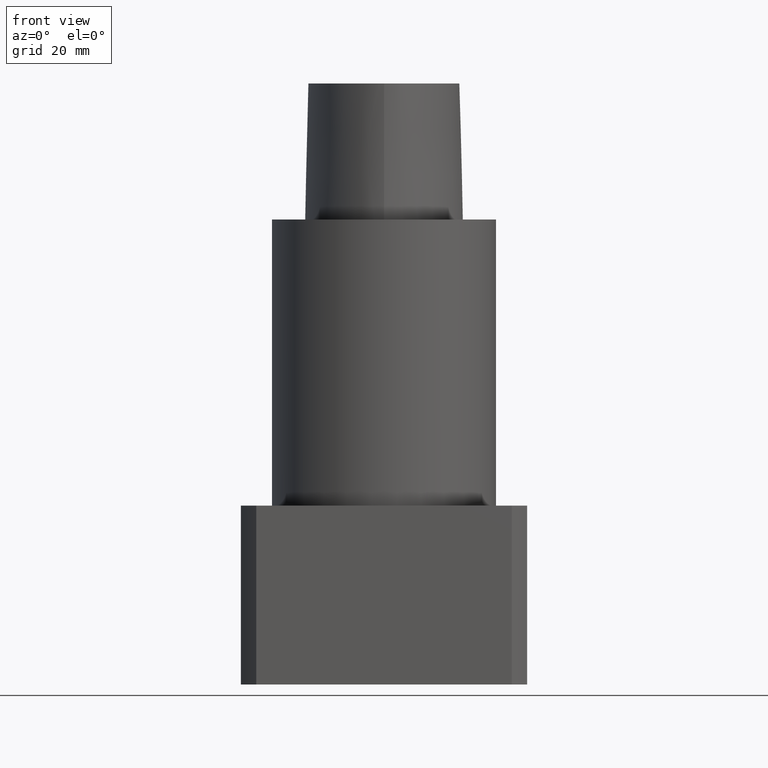
[diagram: clean part render]
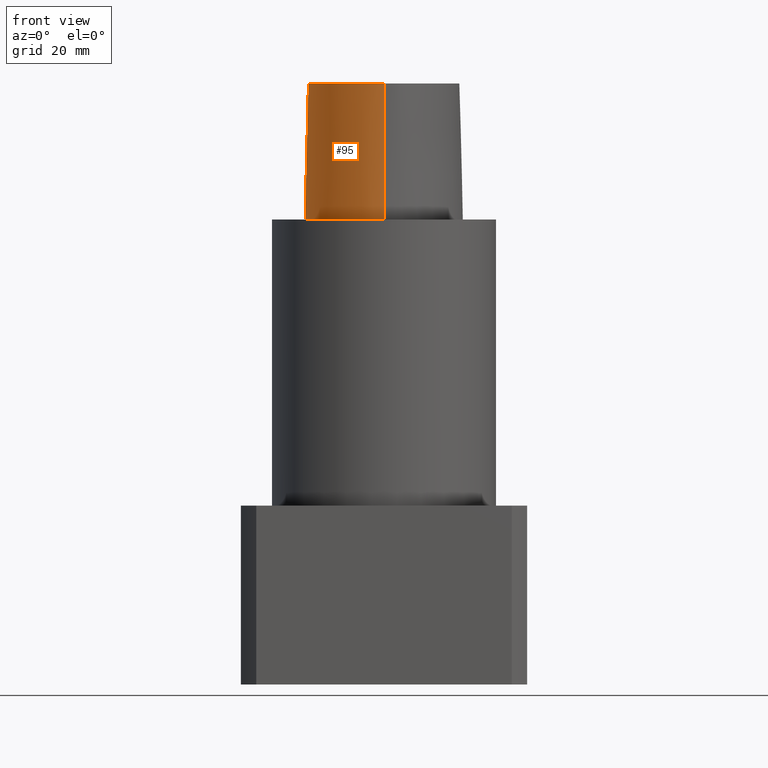
[diagram: same view with one face highlighted and labeled with its STEP entity id]
A machine part, front view. The second image highlights one B-rep face of the part: STEP entity #95.
In plain terms, the highlighted face is a freeform B-spline surface patch.
Its self-contained STEP definition (entity closure, byte-faithful):
#85=EDGE_CURVE('240[2]',#240,#241,#242,.T.);
#95=ADVANCED_FACE('240[2]',(#257),#258,.T.);
#145=EDGE_CURVE('240[2]',#329,#330,#331,.T.);
#170=EDGE_CURVE('240[2]',#241,#330,#363,.T.);
#197=EDGE_CURVE('240[2]',#329,#240,#395,.T.);
#240=VERTEX_POINT('',#434);
#241=VERTEX_POINT('',#435);
#242=LINE('',#436,#437);
#257=FACE_OUTER_BOUND('',#457,.T.);
#258=B_SPLINE_SURFACE_WITH_KNOTS('',3,3,((#458,#459,#460,#461),(#462,#463,#464,#465),(#466,#467,#468,#469),(#470,#471,#472,#473),(#474,#475,#476,#477),(#478,#479,#480,#481),(#482,#483,#484,#485),(#486,#487,#488,#489),(#490,#491,#492,#493),(#494,#495,#496,#497),(#498,#499,#500,#501),(#502,#503,#504,#505),(#506,#507,#508,#509),(#510,#511,#512,#513),(#514,#515,#516,#517),(#518,#519,#520,#521),(#522,#523,#524,#525),(#526,#527,#528,#529)),.UNSPECIFIED.,.F.,.F.,.F.,(4,1,1,1,1,1,1,1,1,2,1,1,1,1,4),(4,4),(-6.6151339308743,-6.20168806019465,-5.78824218951501,-5.37479631883537,-4.96135044815572,-4.13445870679644,-3.30756696543715,-2.89412109475751,-2.48067522407786,-2.06722935339822,-1.65378348271857,-1.24033761203893,-0.826891741359287,-0.413445870679644,0.0),(-3.8,0.0),.UNSPECIFIED.);
#329=VERTEX_POINT('',#714);
#330=VERTEX_POINT('',#715);
#331=LINE('',#716,#717);
#363=B_SPLINE_CURVE_WITH_KNOTS('',3,(#778,#779,#780,#781,#782,#783,#784,#785,#786,#787,#788,#789,#790,#791,#792,#793,#794,#795),.UNSPECIFIED.,.F.,.F.,(4,1,1,1,1,1,1,1,1,2,1,1,1,1,4),(-6.6151339308743,-6.20168806019465,-5.78824218951501,-5.37479631883537,-4.96135044815572,-4.13445870679644,-3.30756696543715,-2.89412109475751,-2.48067522407786,-2.06722935339822,-1.65378348271857,-1.24033761203893,-0.826891741359287,-0.413445870679644,0.0),.UNSPECIFIED.);
#395=B_SPLINE_CURVE_WITH_KNOTS('',3,(#845,#846,#847,#848,#849,#850,#851,#852,#853,#854,#855,#856,#857,#858,#859,#860),.UNSPECIFIED.,.F.,.F.,(4,1,1,1,1,1,1,1,1,1,1,1,1,4),(0.0,0.447924670568964,0.9388024242536,1.50591409090711,2.07314340012323,2.72424957442464,3.2253501842849,3.80982102049476,4.34867996267067,4.85900173381144,5.37972031856977,6.03459825488646,6.61113557741484,6.61513393087381),.UNSPECIFIED.);
#434=CARTESIAN_POINT('',(0.038736923393866,-22.5191997536361,38.0));
#435=CARTESIAN_POINT('',(0.04359356758149,-23.4691235068931,0.0));
#436=CARTESIAN_POINT('',(0.038736923393866,-22.5191997536361,38.0));
#437=VECTOR('',#899,38.0118715498723);
#457=EDGE_LOOP('',(#913,#914,#915,#916));
#458=CARTESIAN_POINT('',(0.038736923393866,-22.5191997536361,38.0));
#459=CARTESIAN_POINT('',(0.04035580478973,-22.8358410047159,25.3333333333066));
#460=CARTESIAN_POINT('',(0.041974686185626,-23.1524822558133,12.6666666666934));
#461=CARTESIAN_POINT('',(0.04359356758149,-23.4691235068931,0.0));
#462=CARTESIAN_POINT('',(-1.33786123484754,-22.5261650259856,38.0));
#463=CARTESIAN_POINT('',(-1.38240731367927,-22.8430399310626,25.3333333333066));
#464=CARTESIAN_POINT('',(-1.42695339249092,-23.1599147815484,12.6666666666934));
#465=CARTESIAN_POINT('',(-1.4714994713963,-23.4767895315797,0.0));
#466=CARTESIAN_POINT('',(-4.08909358431842,-21.9268839879558,38.0));
#467=CARTESIAN_POINT('',(-4.20580731135515,-22.2249725500078,25.3333333333066));
#468=CARTESIAN_POINT('',(-4.32252104640446,-22.5230611651922,12.6666666666934));
#469=CARTESIAN_POINT('',(-4.43923476371401,-22.821149804767,0.0));
#470=CARTESIAN_POINT('',(-7.8333083619947,-19.9973514861616,38.0));
#471=CARTESIAN_POINT('',(-8.00568301809614,-20.2649260859405,25.3333333333066));
#472=CARTESIAN_POINT('',(-8.1780576640789,-20.532500564315,12.6666666666934));
#473=CARTESIAN_POINT('',(-8.35043230079961,-20.8000751253325,0.0));
#474=CARTESIAN_POINT('',(-11.1035071147626,-17.450554957873,38.0));
#475=CARTESIAN_POINT('',(-11.3173048160562,-17.6855739222454,25.3333333333066));
#476=CARTESIAN_POINT('',(-11.5311025116181,-17.9205928617968,12.6666666666934));
#477=CARTESIAN_POINT('',(-11.744900222602,-18.1556117874078,0.0));
#478=CARTESIAN_POINT('',(-14.9379535189057,-13.461132049697,38.0));
#479=CARTESIAN_POINT('',(-15.191622410671,-13.6542981711372,25.3333333333066));
#480=CARTESIAN_POINT('',(-15.4452913389853,-13.8474645327131,12.6666666666934));
#481=CARTESIAN_POINT('',(-15.6989602501314,-14.0406306929147,0.0));
#482=CARTESIAN_POINT('',(-18.6681263017223,-7.59391757463204,38.0));
#483=CARTESIAN_POINT('',(-18.9571800800711,-7.73136168081928,25.3333333333066));
#484=CARTESIAN_POINT('',(-19.2462337287194,-7.86880572399774,12.6666666666934));
#485=CARTESIAN_POINT('',(-19.5352875070682,-8.00624990770787,0.0));
#486=CARTESIAN_POINT('',(-20.7857899858339,-0.952862819790525,38.0));
#487=CARTESIAN_POINT('',(-21.0973808305434,-1.02218087467418,25.3333333333066));
#488=CARTESIAN_POINT('',(-21.408971677436,-1.09149899580772,12.6666666666934));
#489=CARTESIAN_POINT('',(-21.7205626190491,-1.16081708945282,0.0));
#490=CARTESIAN_POINT('',(-21.2911760556836,4.5469215763113,38.0));
#491=CARTESIAN_POINT('',(-21.610337904926,4.54783292082248,25.3333333333066));
#492=CARTESIAN_POINT('',(-21.9294998290918,4.54874426225691,12.6666666666934));
#493=CARTESIAN_POINT('',(-22.2486616783342,4.54965558738736,0.0));
#494=CARTESIAN_POINT('',(-20.7345309521958,8.74909381391006,38.0));
#495=CARTESIAN_POINT('',(-21.0445680426217,8.83349432450556,25.3333333333066));
#496=CARTESIAN_POINT('',(-21.3546050933631,8.91789488065068,12.6666666666934));
#497=CARTESIAN_POINT('',(-21.6646421256468,9.00229539124618,0.0));
#498=CARTESIAN_POINT('',(-19.5531512296439,11.3174844040833,38.0));
#499=CARTESIAN_POINT('',(-19.8336219699984,11.4710077674213,25.3333333333066));
#500=CARTESIAN_POINT('',(-20.1140927680763,11.6245311337623,12.6666666666934));
#501=CARTESIAN_POINT('',(-20.3945635471922,11.7780544971003,0.0));
#502=CARTESIAN_POINT('',(-17.9100913688793,13.524027510437,38.0));
#503=CARTESIAN_POINT('',(-18.1375785458768,13.7487051053655,25.3333333333066));
#504=CARTESIAN_POINT('',(-18.365065665211,13.9733826973296,12.6666666666934));
#505=CARTESIAN_POINT('',(-18.5925528034471,14.1980602922581,0.0));
#506=CARTESIAN_POINT('',(-15.7996349656398,15.3762170634413,38.0));
#507=CARTESIAN_POINT('',(-15.9739761051783,15.6434029846179,25.3333333333066));
#508=CARTESIAN_POINT('',(-16.1483172726872,15.9105889315134,12.6666666666934));
#509=CARTESIAN_POINT('',(-16.3226584122258,16.1777748720707,0.0));
#510=CARTESIAN_POINT('',(-12.1175640002064,17.3825162484012,38.0));
#511=CARTESIAN_POINT('',(-12.2475895903055,17.6724842099619,25.3333333333066));
#512=CARTESIAN_POINT('',(-12.3776152070492,17.9624521925696,12.6666666666934));
#513=CARTESIAN_POINT('',(-12.5076407874579,18.2524201541303,0.0));
#514=CARTESIAN_POINT('',(-8.21761151654222,18.7588585989994,38.0));
#515=CARTESIAN_POINT('',(-8.30099497910627,19.0656105427881,25.3333333333066));
#516=CARTESIAN_POINT('',(-8.38437843913309,19.3723624535439,12.6666666666934));
#517=CARTESIAN_POINT('',(-8.46776192107786,19.679114377952,0.0));
#518=CARTESIAN_POINT('',(-4.13466093881225,19.5396850837055,38.0));
#519=CARTESIAN_POINT('',(-4.16658562115465,19.8557172636973,25.3333333333066));
#520=CARTESIAN_POINT('',(-4.19851029939059,20.1717494367229,12.6666666666934));
#521=CARTESIAN_POINT('',(-4.23043497193604,20.487781597334,0.0));
#522=CARTESIAN_POINT('',(-1.37917220403684,19.6638560588908,38.0));
#523=CARTESIAN_POINT('',(-1.39382511685176,19.98016223565,25.3333333333066));
#524=CARTESIAN_POINT('',(-1.40847802945569,20.296468399885,12.6666666666934));
#525=CARTESIAN_POINT('',(-1.42313094248379,20.6127745766442,0.0));
#526=CARTESIAN_POINT('',(-0.001218547003662,19.7276821925089,38.0));
#527=CARTESIAN_POINT('',(-0.015869696232855,20.043988446791,25.3333333333066));
#528=CARTESIAN_POINT('',(-0.030520845462092,20.3602947010464,12.6666666666934));
#529=CARTESIAN_POINT('',(-0.045171994691285,20.6766009553285,0.0));
#714=CARTESIAN_POINT('',(-0.001218547003662,19.7276821925089,38.0));
#715=CARTESIAN_POINT('',(-0.045171994691285,20.6766009553285,0.0));
#716=CARTESIAN_POINT('',(-0.001218547003662,19.7276821925089,38.0));
#717=VECTOR('',#996,38.0118715498723);
#778=CARTESIAN_POINT('',(0.04359356758149,-23.4691235068931,0.0));
#779=CARTESIAN_POINT('',(-1.4714994713963,-23.4767895315797,0.0));
#780=CARTESIAN_POINT('',(-4.43923476371401,-22.821149804767,0.0));
#781=CARTESIAN_POINT('',(-8.35043230079961,-20.8000751253325,0.0));
#782=CARTESIAN_POINT('',(-11.744900222602,-18.1556117874078,0.0));
#783=CARTESIAN_POINT('',(-15.6989602501314,-14.0406306929147,0.0));
#784=CARTESIAN_POINT('',(-19.5352875070682,-8.00624990770787,0.0));
#785=CARTESIAN_POINT('',(-21.7205626190491,-1.16081708945282,0.0));
#786=CARTESIAN_POINT('',(-22.2486616783342,4.54965558738736,0.0));
#787=CARTESIAN_POINT('',(-21.6646421256468,9.00229539124618,0.0));
#788=CARTESIAN_POINT('',(-20.3945635471922,11.7780544971003,0.0));
#789=CARTESIAN_POINT('',(-18.5925528034471,14.1980602922581,0.0));
#790=CARTESIAN_POINT('',(-16.3226584122258,16.1777748720707,0.0));
#791=CARTESIAN_POINT('',(-12.5076407874579,18.2524201541303,0.0));
#792=CARTESIAN_POINT('',(-8.46776192107786,19.679114377952,0.0));
#793=CARTESIAN_POINT('',(-4.23043497193604,20.487781597334,0.0));
#794=CARTESIAN_POINT('',(-1.42313094248379,20.6127745766442,0.0));
#795=CARTESIAN_POINT('',(-0.045171994691285,20.6766009553285,0.0));
#845=CARTESIAN_POINT('',(-0.001218547003662,19.7276821925089,38.0));
#846=CARTESIAN_POINT('',(-1.49408492138443,19.6585333605309,38.0));
#847=CARTESIAN_POINT('',(-4.62297391420352,19.513604770166,38.0));
#848=CARTESIAN_POINT('',(-9.56160616752212,18.4291575730197,38.0));
#849=CARTESIAN_POINT('',(-14.5427684976927,16.2697452580488,38.0));
#850=CARTESIAN_POINT('',(-19.4315563551602,12.5302108980807,38.0));
#851=CARTESIAN_POINT('',(-21.306358833612,6.76352894547076,38.0));
#852=CARTESIAN_POINT('',(-21.0724946936277,0.957075236984038,38.0));
#853=CARTESIAN_POINT('',(-19.7876470880144,-4.34628503581652,38.0));
#854=CARTESIAN_POINT('',(-17.5396999600095,-9.33314444653089,38.0));
#855=CARTESIAN_POINT('',(-14.645447733857,-13.7185760345629,38.0));
#856=CARTESIAN_POINT('',(-10.7996726536643,-17.856257282137,38.0));
#857=CARTESIAN_POINT('',(-6.00479510196376,-21.2687382067675,38.0));
#858=CARTESIAN_POINT('',(-1.90747171908525,-22.5250621415864,38.0));
#859=CARTESIAN_POINT('',(0.025424107066464,-22.5192678176378,38.0));
#860=CARTESIAN_POINT('',(0.038736923394311,-22.519199753636,38.0));
#899=DIRECTION('',(0.000127766510556,-0.024990186342461,-0.999687688361864));
#913=ORIENTED_EDGE('',*,*,#170,.F.);
#914=ORIENTED_EDGE('',*,*,#85,.F.);
#915=ORIENTED_EDGE('',*,*,#197,.F.);
#916=ORIENTED_EDGE('',*,*,#145,.T.);
#996=DIRECTION('',(-0.001156308434589,0.02496374748543,-0.999687688361864));